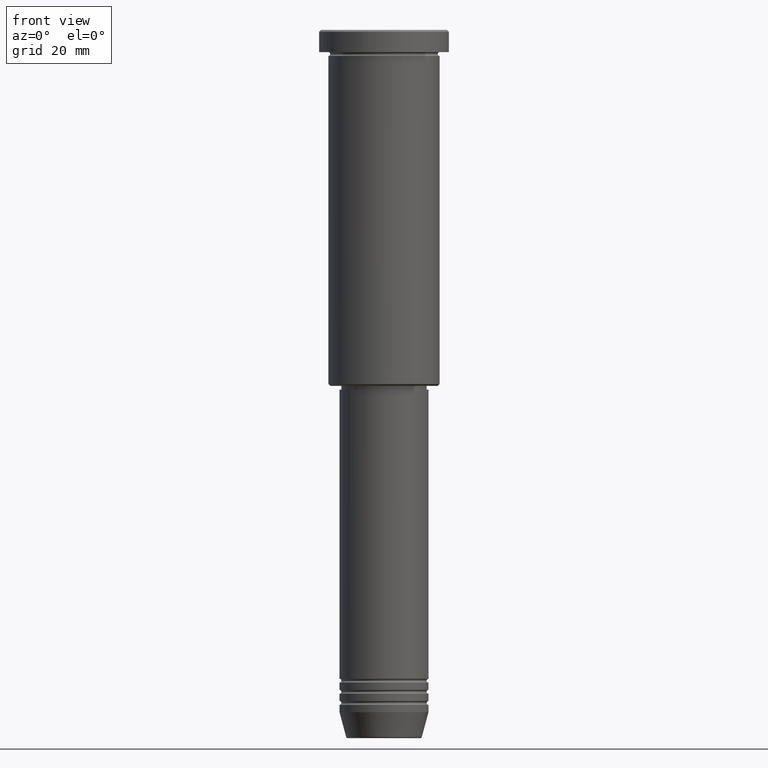
[diagram: clean part render]
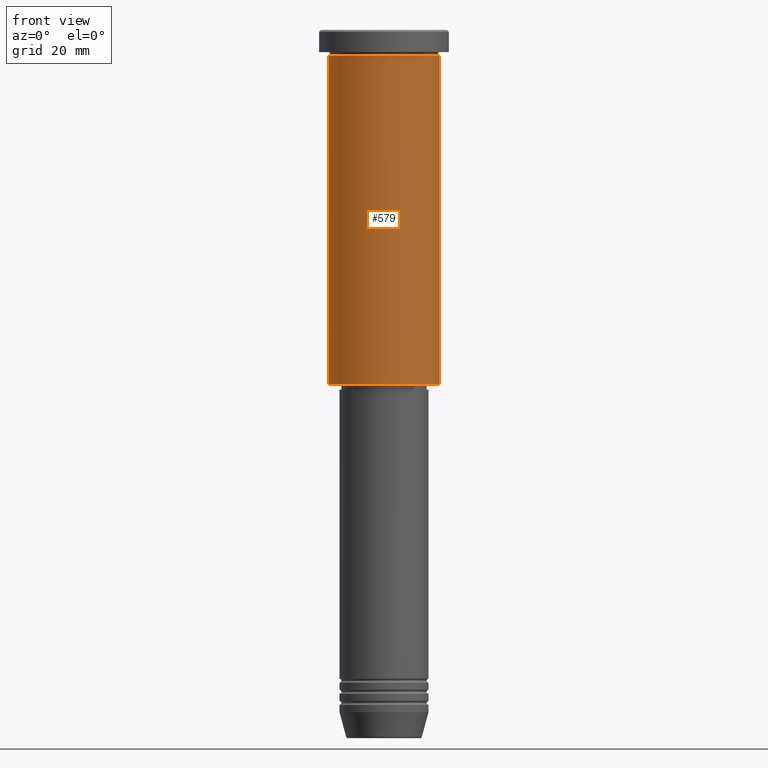
[diagram: same view with one face highlighted and labeled with its STEP entity id]
A machine part, front view. The second image highlights one B-rep face of the part: STEP entity #579.
In plain terms, the highlighted cylindrical surface (partial cylindrical patch) has radius 15 mm, axis along (-0, -0, 1).
Its self-contained STEP definition (entity closure, byte-faithful):
#47 = CARTESIAN_POINT ( 'NONE',  ( 15.00000000000000000, 0.000000000000000000, -95.49999999999997158 ) ) ;
#98 = FACE_OUTER_BOUND ( 'NONE', #192, .T. ) ;
#104 = DIRECTION ( 'NONE',  ( 1.000000000000000000, 0.000000000000000000, 0.000000000000000000 ) ) ;
#108 = ORIENTED_EDGE ( 'NONE', *, *, #775, .F. ) ;
#126 = LINE ( 'NONE', #462, #888 ) ;
#158 = DIRECTION ( 'NONE',  ( -0.000000000000000000, -0.000000000000000000, 1.000000000000000000 ) ) ;
#171 = ORIENTED_EDGE ( 'NONE', *, *, #561, .T. ) ;
#184 = CYLINDRICAL_SURFACE ( 'NONE', #973, 15.00000000000000000 ) ;
#192 = EDGE_LOOP ( 'NONE', ( #108, #171, #289, #1161 ) ) ;
#250 = CARTESIAN_POINT ( 'NONE',  ( 0.000000000000000000, 0.000000000000000000, -6.999999999999995559 ) ) ;
#253 = CARTESIAN_POINT ( 'NONE',  ( 15.00000000000000000, 0.000000000000000000, 0.000000000000000000 ) ) ;
#276 = AXIS2_PLACEMENT_3D ( 'NONE', #250, #595, #955 ) ;
#278 = CIRCLE ( 'NONE', #911, 15.00000000000000000 ) ;
#289 = ORIENTED_EDGE ( 'NONE', *, *, #406, .T. ) ;
#330 = CARTESIAN_POINT ( 'NONE',  ( 15.00000000000000000, 0.000000000000000000, -6.999999999999995559 ) ) ;
#406 = EDGE_CURVE ( 'NONE', #514, #1006, #1160, .T. ) ;
#459 = DIRECTION ( 'NONE',  ( -0.000000000000000000, -0.000000000000000000, 1.000000000000000000 ) ) ;
#462 = CARTESIAN_POINT ( 'NONE',  ( -15.00000000000000000, 1.836970198721029589E-15, 0.000000000000000000 ) ) ;
#480 = DIRECTION ( 'NONE',  ( -0.000000000000000000, -0.000000000000000000, 1.000000000000000000 ) ) ;
#512 = DIRECTION ( 'NONE',  ( -1.000000000000000000, 0.000000000000000000, 0.000000000000000000 ) ) ;
#513 = DIRECTION ( 'NONE',  ( -0.000000000000000000, -0.000000000000000000, 1.000000000000000000 ) ) ;
#514 = VERTEX_POINT ( 'NONE', #47 ) ;
#530 = CARTESIAN_POINT ( 'NONE',  ( 0.000000000000000000, 0.000000000000000000, 0.000000000000000000 ) ) ;
#550 = EDGE_CURVE ( 'NONE', #970, #1006, #909, .T. ) ;
#561 = EDGE_CURVE ( 'NONE', #811, #514, #278, .T. ) ;
#570 = VECTOR ( 'NONE', #513, 1000.000000000000000 ) ;
#579 = ADVANCED_FACE ( 'NONE', ( #98 ), #184, .T. ) ;
#595 = DIRECTION ( 'NONE',  ( -0.000000000000000000, -0.000000000000000000, 1.000000000000000000 ) ) ;
#775 = EDGE_CURVE ( 'NONE', #811, #970, #126, .T. ) ;
#811 = VERTEX_POINT ( 'NONE', #904 ) ;
#860 = CARTESIAN_POINT ( 'NONE',  ( 0.000000000000000000, 0.000000000000000000, -95.49999999999997158 ) ) ;
#888 = VECTOR ( 'NONE', #480, 1000.000000000000000 ) ;
#904 = CARTESIAN_POINT ( 'NONE',  ( -15.00000000000000000, 1.836970198721029589E-15, -95.49999999999997158 ) ) ;
#909 = CIRCLE ( 'NONE', #276, 15.00000000000000000 ) ;
#911 = AXIS2_PLACEMENT_3D ( 'NONE', #860, #158, #512 ) ;
#931 = CARTESIAN_POINT ( 'NONE',  ( -15.00000000000000000, 1.836970198721029589E-15, -6.999999999999995559 ) ) ;
#955 = DIRECTION ( 'NONE',  ( 1.000000000000000000, 0.000000000000000000, 0.000000000000000000 ) ) ;
#970 = VERTEX_POINT ( 'NONE', #931 ) ;
#973 = AXIS2_PLACEMENT_3D ( 'NONE', #530, #459, #104 ) ;
#1006 = VERTEX_POINT ( 'NONE', #330 ) ;
#1160 = LINE ( 'NONE', #253, #570 ) ;
#1161 = ORIENTED_EDGE ( 'NONE', *, *, #550, .F. ) ;